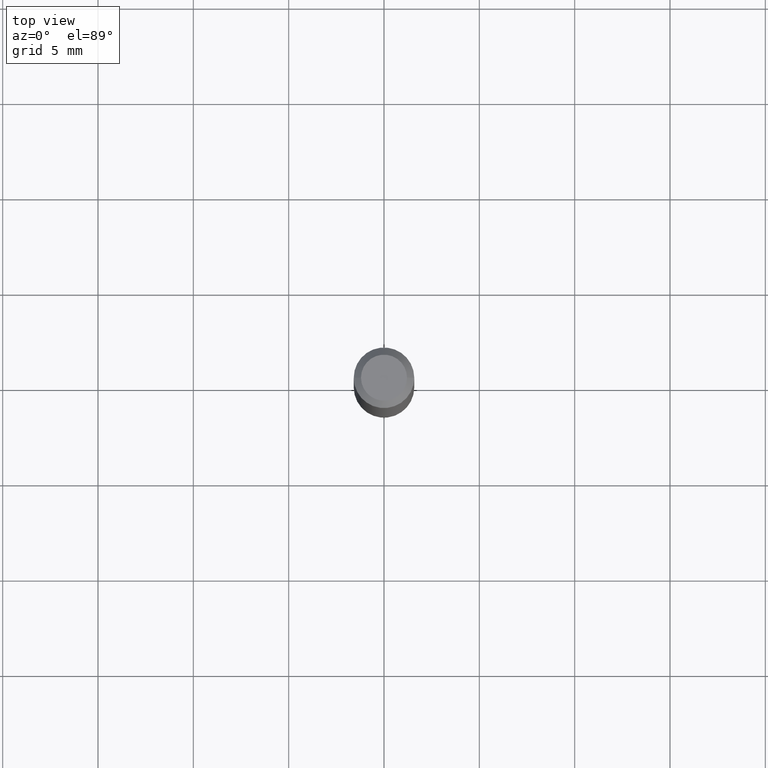
[diagram: clean part render]
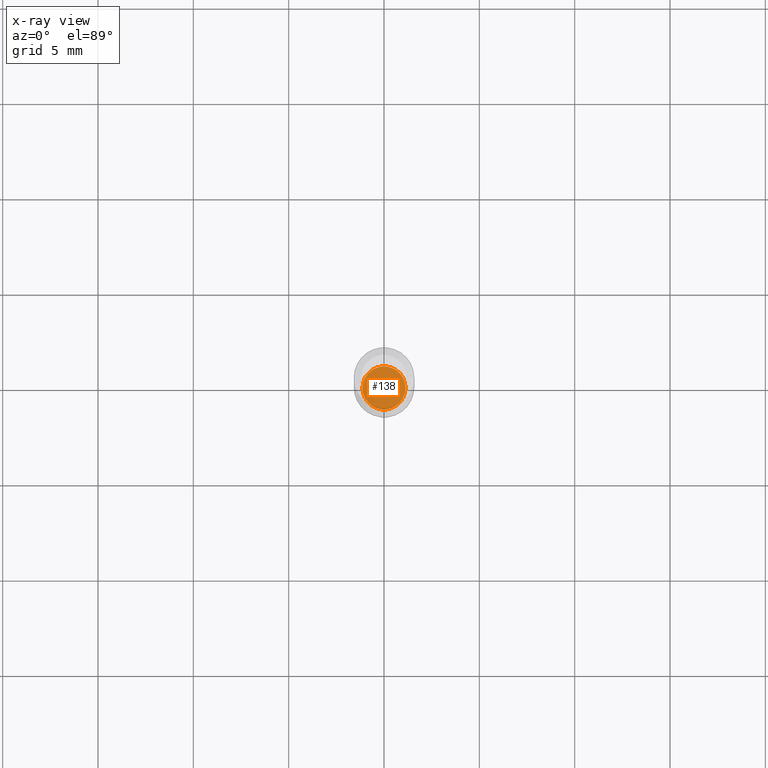
[diagram: x-ray — body ghosted, one internal face saturated and labeled with its STEP entity id]
A machine part, top view, then the same camera in x-ray: the body is ghosted and one INTERNAL B-rep face — a face not visible from any outside direction — is saturated and labeled: STEP entity #138.
In plain terms, the highlighted planar face has unit normal (-0, 0, 1).
Its self-contained STEP definition (entity closure, byte-faithful):
#5 = VERTEX_POINT ( 'NONE', #261 ) ;
#65 = DIRECTION ( 'NONE',  ( -2.445468806185136597E-29, 3.491481338843145583E-15, 1.000000000000000000 ) ) ;
#108 = VERTEX_POINT ( 'NONE', #413 ) ;
#138 = ADVANCED_FACE ( 'NONE', ( #233 ), #266, .F. ) ;
#165 = AXIS2_PLACEMENT_3D ( 'NONE', #431, #65, #208 ) ;
#168 = DIRECTION ( 'NONE',  ( -2.438088387897960049E-29, 3.491481338843145188E-15, 1.000000000000000000 ) ) ;
#198 = DIRECTION ( 'NONE',  ( 1.000000000000000000, -6.982962677686265922E-15, 4.876176775795935793E-29 ) ) ;
#208 = DIRECTION ( 'NONE',  ( 1.000000000000000000, -6.982962677686257244E-15, 0.000000000000000000 ) ) ;
#225 = ORIENTED_EDGE ( 'NONE', *, *, #352, .F. ) ;
#233 = FACE_OUTER_BOUND ( 'NONE', #388, .T. ) ;
#235 = CARTESIAN_POINT ( 'NONE',  ( 3.007926631607718216E-29, -4.294522046777069173E-15, -1.230000000000000204 ) ) ;
#259 = CIRCLE ( 'NONE', #342, 0.04449999999999999789 ) ;
#261 = CARTESIAN_POINT ( 'NONE',  ( -0.04449999999999999789, -3.975681302189713503E-15, -1.230000000000000204 ) ) ;
#266 = PLANE ( 'NONE',  #409 ) ;
#323 = DIRECTION ( 'NONE',  ( 1.000000000000000000, -6.982962677686257244E-15, 0.000000000000000000 ) ) ;
#337 = EDGE_CURVE ( 'NONE', #108, #5, #259, .T. ) ;
#342 = AXIS2_PLACEMENT_3D ( 'NONE', #394, #433, #323 ) ;
#352 = EDGE_CURVE ( 'NONE', #5, #108, #418, .T. ) ;
#388 = EDGE_LOOP ( 'NONE', ( #427, #225 ) ) ;
#394 = CARTESIAN_POINT ( 'NONE',  ( 3.007926631607718216E-29, -4.294522046777069173E-15, -1.230000000000000204 ) ) ;
#409 = AXIS2_PLACEMENT_3D ( 'NONE', #235, #168, #198 ) ;
#413 = CARTESIAN_POINT ( 'NONE',  ( 0.04449999999999999789, -4.605263885934107852E-15, -1.230000000000000204 ) ) ;
#418 = CIRCLE ( 'NONE', #165, 0.04449999999999999789 ) ;
#427 = ORIENTED_EDGE ( 'NONE', *, *, #337, .F. ) ;
#431 = CARTESIAN_POINT ( 'NONE',  ( 3.007926631607718216E-29, -4.294522046777069173E-15, -1.230000000000000204 ) ) ;
#433 = DIRECTION ( 'NONE',  ( -2.445468806185136597E-29, 3.491481338843145583E-15, 1.000000000000000000 ) ) ;